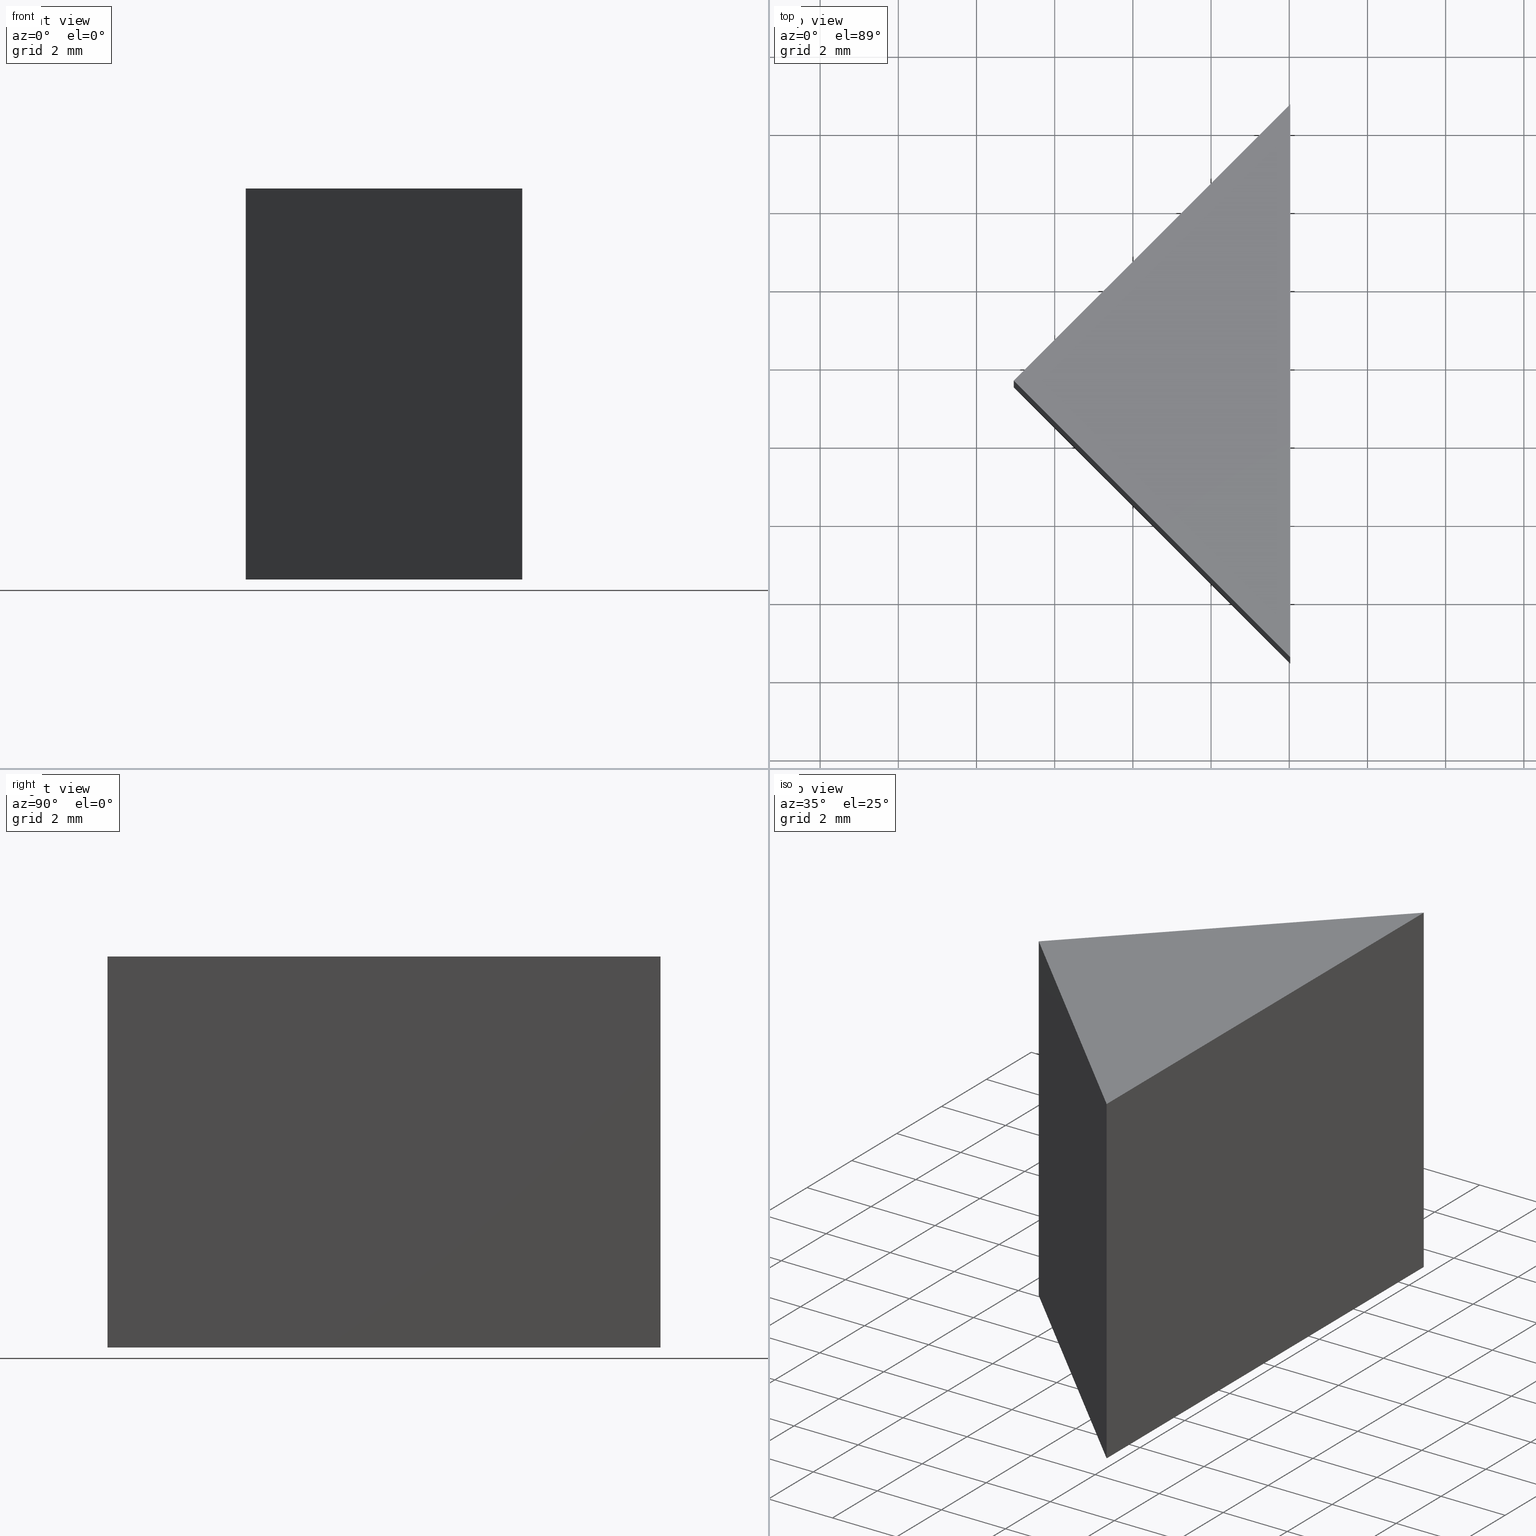
[diagram: canonical four-view strip — front | top / right | iso, engineering-drawing reading convention]
A machine part, canonical four-view strip (front | top / right | iso — engineering-drawing reading convention). The complete STEP part file that produces these views, byte-faithful:
ISO-10303-21;
HEADER;
FILE_DESCRIPTION (( 'STEP AP214' ),
    '1' );
FILE_NAME ('300001.STEP',
    '2019-08-12T07:43:15',
    ( '' ),
    ( '' ),
    'SwSTEP 2.0',
    'SolidWorks 2016',
    '' );
FILE_SCHEMA (( 'AUTOMOTIVE_DESIGN' ));
ENDSEC;

DATA;
#1 = CARTESIAN_POINT ( 'NONE',  ( 110.9533399051898500, 27.55138510566812500, 0.0000000000000000000 ) ) ;
#2 = ORIENTED_EDGE ( 'NONE', *, *, #15, .F. ) ;
#3 = CARTESIAN_POINT ( 'NONE',  ( 110.9533399051898500, 27.55138510566812500, 0.0000000000000000000 ) ) ;
#4 = AXIS2_PLACEMENT_3D ( 'NONE', #16, #104, #63 ) ;
#5 = PLANE ( 'NONE',  #163 ) ;
#6 = LINE ( 'NONE', #116, #88 ) ;
#7 = FACE_OUTER_BOUND ( 'NONE', #60, .T. ) ;
#8 = VERTEX_POINT ( 'NONE', #3 ) ;
#9 = COLOUR_RGB ( '',1.000000000000000000, 1.000000000000000000, 1.000000000000000000 ) ;
#10 =( NAMED_UNIT ( * ) SI_UNIT ( $, .STERADIAN. ) SOLID_ANGLE_UNIT ( ) );
#11 = LINE ( 'NONE', #28, #165 ) ;
#12 =( GEOMETRIC_REPRESENTATION_CONTEXT ( 3 ) GLOBAL_UNCERTAINTY_ASSIGNED_CONTEXT ( ( #120 ) ) GLOBAL_UNIT_ASSIGNED_CONTEXT ( ( #148, #54, #122 ) ) REPRESENTATION_CONTEXT ( 'NONE', 'WORKASPACE' ) );
#13 = STYLED_ITEM ( 'NONE', ( #72 ), #158 ) ;
#14 = CARTESIAN_POINT ( 'NONE',  ( 110.9533399051898500, 27.55138510566812500, 10.00000000000000000 ) ) ;
#15 = EDGE_CURVE ( 'NONE', #71, #56, #142, .T. ) ;
#16 = CARTESIAN_POINT ( 'NONE',  ( 0.0000000000000000000, 0.0000000000000000000, 0.0000000000000000000 ) ) ;
#17 = DIRECTION ( 'NONE',  ( 0.7071067811865464600, -0.7071067811865486800, 0.0000000000000000000 ) ) ;
#18 = DIRECTION ( 'NONE',  ( -0.0000000000000000000, 0.0000000000000000000, 1.000000000000000000 ) ) ;
#19 =( NAMED_UNIT ( * ) PLANE_ANGLE_UNIT ( ) SI_UNIT ( $, .RADIAN. ) );
#20 = PRODUCT_DEFINITION_FORMATION_WITH_SPECIFIED_SOURCE ( '�κ�', '', #168, .NOT_KNOWN. ) ;
#21 = DIRECTION ( 'NONE',  ( 0.0000000000000000000, 0.0000000000000000000, 1.000000000000000000 ) ) ;
#22 = PRODUCT_RELATED_PRODUCT_CATEGORY ( 'part', '', ( #168 ) ) ;
#23 = ORIENTED_EDGE ( 'NONE', *, *, #40, .T. ) ;
#24 = CARTESIAN_POINT ( 'NONE',  ( 118.0244077170553100, 20.48031729380264600, 10.00000000000000000 ) ) ;
#25 = VECTOR ( 'NONE', #118, 999.9999999999998900 ) ;
#26 = CARTESIAN_POINT ( 'NONE',  ( 118.0244077170553400, 34.62245291753359300, 0.0000000000000000000 ) ) ;
#27 = ORIENTED_EDGE ( 'NONE', *, *, #33, .T. ) ;
#28 = CARTESIAN_POINT ( 'NONE',  ( 110.9533399051898500, 27.55138510566812500, 0.0000000000000000000 ) ) ;
#29 = SURFACE_STYLE_FILL_AREA ( #82 ) ;
#30 = DIRECTION ( 'NONE',  ( 0.7071067811865468000, -0.7071067811865483500, 0.0000000000000000000 ) ) ;
#31 = CARTESIAN_POINT ( 'NONE',  ( 118.0244077170553100, 20.48031729380264600, 0.0000000000000000000 ) ) ;
#32 = AXIS2_PLACEMENT_3D ( 'NONE', #138, #21, #108 ) ;
#33 = EDGE_CURVE ( 'NONE', #8, #160, #11, .T. ) ;
#34 =( LENGTH_UNIT ( ) NAMED_UNIT ( * ) SI_UNIT ( .MILLI., .METRE. ) );
#35 = ORIENTED_EDGE ( 'NONE', *, *, #33, .F. ) ;
#36 = EDGE_CURVE ( 'NONE', #99, #8, #59, .T. ) ;
#37 = ADVANCED_FACE ( 'NONE', ( #50 ), #101, .F. ) ;
#38 = CLOSED_SHELL ( 'NONE', ( #49, #126, #37, #114, #86 ) ) ;
#39 = EDGE_CURVE ( 'NONE', #56, #102, #6, .T. ) ;
#40 = EDGE_CURVE ( 'NONE', #71, #160, #47, .T. ) ;
#41 = STYLED_ITEM ( 'NONE', ( #103 ), #133 ) ;
#42 = SURFACE_SIDE_STYLE ('',( #68 ) ) ;
#43 = FACE_OUTER_BOUND ( 'NONE', #95, .T. ) ;
#44 = VECTOR ( 'NONE', #80, 1000.000000000000000 ) ;
#45 =( NAMED_UNIT ( * ) PLANE_ANGLE_UNIT ( ) SI_UNIT ( $, .RADIAN. ) );
#46 = MECHANICAL_DESIGN_GEOMETRIC_PRESENTATION_REPRESENTATION (  '', ( #13 ), #12 ) ;
#47 = LINE ( 'NONE', #145, #115 ) ;
#48 = ORIENTED_EDGE ( 'NONE', *, *, #40, .F. ) ;
#49 = ADVANCED_FACE ( 'NONE', ( #84 ), #51, .F. ) ;
#50 = FACE_OUTER_BOUND ( 'NONE', #127, .T. ) ;
#51 = PLANE ( 'NONE',  #55 ) ;
#52 = SURFACE_STYLE_USAGE ( .BOTH. , #42 ) ;
#53 = EDGE_CURVE ( 'NONE', #102, #71, #150, .T. ) ;
#54 =( NAMED_UNIT ( * ) PLANE_ANGLE_UNIT ( ) SI_UNIT ( $, .RADIAN. ) );
#55 = AXIS2_PLACEMENT_3D ( 'NONE', #14, #143, #130 ) ;
#56 = VERTEX_POINT ( 'NONE', #111 ) ;
#57 = PRODUCT_DEFINITION_SHAPE ( 'NONE', 'NONE',  #100 ) ;
#58 = ORIENTED_EDGE ( 'NONE', *, *, #36, .T. ) ;
#59 = LINE ( 'NONE', #1, #25 ) ;
#60 = EDGE_LOOP ( 'NONE', ( #73, #121, #2, #23 ) ) ;
#61 = DIRECTION ( 'NONE',  ( -0.0000000000000000000, -0.0000000000000000000, -1.000000000000000000 ) ) ;
#62 = EDGE_CURVE ( 'NONE', #102, #8, #98, .T. ) ;
#63 = DIRECTION ( 'NONE',  ( 1.000000000000000000, 0.0000000000000000000, 0.0000000000000000000 ) ) ;
#64 = DIRECTION ( 'NONE',  ( 0.7071067811865486800, 0.7071067811865464600, 0.0000000000000000000 ) ) ;
#65 = DIRECTION ( 'NONE',  ( -1.962615573354719300E-015, -1.000000000000000000, 0.0000000000000000000 ) ) ;
#66 = VECTOR ( 'NONE', #131, 1000.000000000000000 ) ;
#67 = ORIENTED_EDGE ( 'NONE', *, *, #117, .T. ) ;
#68 = SURFACE_STYLE_FILL_AREA ( #106 ) ;
#69 =( NAMED_UNIT ( * ) SI_UNIT ( $, .STERADIAN. ) SOLID_ANGLE_UNIT ( ) );
#70 = PRODUCT_CONTEXT ( 'NONE', #161, 'mechanical' ) ;
#71 = VERTEX_POINT ( 'NONE', #24 ) ;
#72 = PRESENTATION_STYLE_ASSIGNMENT (( #52 ) ) ;
#73 = ORIENTED_EDGE ( 'NONE', *, *, #125, .T. ) ;
#74 = AXIS2_PLACEMENT_3D ( 'NONE', #119, #147, #65 ) ;
#75 = DIRECTION ( 'NONE',  ( -0.0000000000000000000, -0.0000000000000000000, -1.000000000000000000 ) ) ;
#76 = LINE ( 'NONE', #157, #44 ) ;
#77 = CARTESIAN_POINT ( 'NONE',  ( 110.9533399051898500, 27.55138510566812500, 10.00000000000000000 ) ) ;
#78 = DIRECTION ( 'NONE',  ( -0.7071067811865486800, -0.7071067811865464600, -0.0000000000000000000 ) ) ;
#79 = DIRECTION ( 'NONE',  ( 1.962615573354719300E-015, 1.000000000000000000, 0.0000000000000000000 ) ) ;
#80 = DIRECTION ( 'NONE',  ( -0.0000000000000000000, -0.0000000000000000000, -1.000000000000000000 ) ) ;
#81 = ORIENTED_EDGE ( 'NONE', *, *, #62, .T. ) ;
#82 = FILL_AREA_STYLE ('',( #137 ) ) ;
#83 = APPLICATION_CONTEXT ( 'automotive_design' ) ;
#84 = FACE_OUTER_BOUND ( 'NONE', #153, .T. ) ;
#85 = PRESENTATION_LAYER_ASSIGNMENT (  '', '', ( #41 ) ) ;
#86 = ADVANCED_FACE ( 'NONE', ( #43 ), #89, .F. ) ;
#87 = ORIENTED_EDGE ( 'NONE', *, *, #125, .F. ) ;
#88 = VECTOR ( 'NONE', #78, 999.9999999999998900 ) ;
#89 = PLANE ( 'NONE',  #4 ) ;
#90 = CARTESIAN_POINT ( 'NONE',  ( 0.0000000000000000000, 0.0000000000000000000, 10.00000000000000000 ) ) ;
#91 = CARTESIAN_POINT ( 'NONE',  ( 110.9533399051898500, 27.55138510566812500, 10.00000000000000000 ) ) ;
#92 = VECTOR ( 'NONE', #75, 1000.000000000000000 ) ;
#93 = PLANE ( 'NONE',  #74 ) ;
#94 = PRESENTATION_LAYER_ASSIGNMENT (  '', '', ( #13 ) ) ;
#95 = EDGE_LOOP ( 'NONE', ( #35, #139, #87 ) ) ;
#96 =( LENGTH_UNIT ( ) NAMED_UNIT ( * ) SI_UNIT ( .MILLI., .METRE. ) );
#97 = SURFACE_STYLE_USAGE ( .BOTH. , #151 ) ;
#98 = LINE ( 'NONE', #91, #92 ) ;
#99 = VERTEX_POINT ( 'NONE', #26 ) ;
#100 = PRODUCT_DEFINITION ( 'δ֪', '', #20, #167 ) ;
#101 = PLANE ( 'NONE',  #164 ) ;
#102 = VERTEX_POINT ( 'NONE', #77 ) ;
#103 = PRESENTATION_STYLE_ASSIGNMENT (( #97 ) ) ;
#104 = DIRECTION ( 'NONE',  ( -0.0000000000000000000, 0.0000000000000000000, 1.000000000000000000 ) ) ;
#105 =( GEOMETRIC_REPRESENTATION_CONTEXT ( 3 ) GLOBAL_UNCERTAINTY_ASSIGNED_CONTEXT ( ( #107 ) ) GLOBAL_UNIT_ASSIGNED_CONTEXT ( ( #96, #45, #69 ) ) REPRESENTATION_CONTEXT ( 'NONE', 'WORKASPACE' ) );
#106 = FILL_AREA_STYLE ('',( #156 ) ) ;
#107 = UNCERTAINTY_MEASURE_WITH_UNIT (LENGTH_MEASURE( 1.000000000000000100E-005 ), #96, 'distance_accuracy_value', 'NONE');
#108 = DIRECTION ( 'NONE',  ( 1.000000000000000000, 0.0000000000000000000, 0.0000000000000000000 ) ) ;
#109 = VECTOR ( 'NONE', #79, 1000.000000000000000 ) ;
#110 = LINE ( 'NONE', #31, #109 ) ;
#111 = CARTESIAN_POINT ( 'NONE',  ( 118.0244077170553400, 34.62245291753359300, 10.00000000000000000 ) ) ;
#112 = FACE_OUTER_BOUND ( 'NONE', #140, .T. ) ;
#113 = COLOUR_RGB ( '',1.000000000000000000, 1.000000000000000000, 1.000000000000000000 ) ;
#114 = ADVANCED_FACE ( 'NONE', ( #112 ), #5, .T. ) ;
#115 = VECTOR ( 'NONE', #61, 1000.000000000000000 ) ;
#116 = CARTESIAN_POINT ( 'NONE',  ( 110.9533399051898500, 27.55138510566812500, 10.00000000000000000 ) ) ;
#117 = EDGE_CURVE ( 'NONE', #56, #99, #76, .T. ) ;
#118 = DIRECTION ( 'NONE',  ( -0.7071067811865486800, -0.7071067811865464600, -0.0000000000000000000 ) ) ;
#119 = CARTESIAN_POINT ( 'NONE',  ( 118.0244077170553100, 20.48031729380264600, 10.00000000000000000 ) ) ;
#120 = UNCERTAINTY_MEASURE_WITH_UNIT (LENGTH_MEASURE( 1.000000000000000100E-005 ), #148, 'distance_accuracy_value', 'NONE');
#121 = ORIENTED_EDGE ( 'NONE', *, *, #117, .F. ) ;
#122 =( NAMED_UNIT ( * ) SI_UNIT ( $, .STERADIAN. ) SOLID_ANGLE_UNIT ( ) );
#123 = CARTESIAN_POINT ( 'NONE',  ( 118.0244077170553100, 20.48031729380264600, 0.0000000000000000000 ) ) ;
#124 = ORIENTED_EDGE ( 'NONE', *, *, #39, .T. ) ;
#125 = EDGE_CURVE ( 'NONE', #160, #99, #110, .T. ) ;
#126 = ADVANCED_FACE ( 'NONE', ( #7 ), #93, .F. ) ;
#127 = EDGE_LOOP ( 'NONE', ( #58, #149, #166, #67 ) ) ;
#128 = UNCERTAINTY_MEASURE_WITH_UNIT (LENGTH_MEASURE( 1.000000000000000100E-005 ), #34, 'distance_accuracy_value', 'NONE');
#129 = ORIENTED_EDGE ( 'NONE', *, *, #53, .T. ) ;
#130 = DIRECTION ( 'NONE',  ( -0.7071067811865468000, 0.7071067811865483500, 0.0000000000000000000 ) ) ;
#131 = DIRECTION ( 'NONE',  ( 1.962615573354719300E-015, 1.000000000000000000, 0.0000000000000000000 ) ) ;
#132 = CARTESIAN_POINT ( 'NONE',  ( 110.9533399051898500, 27.55138510566812500, 10.00000000000000000 ) ) ;
#133 = ADVANCED_BREP_SHAPE_REPRESENTATION ( '300001', ( #158, #32 ), #136 ) ;
#134 = DIRECTION ( 'NONE',  ( 1.000000000000000000, 0.0000000000000000000, 0.0000000000000000000 ) ) ;
#135 = ORIENTED_EDGE ( 'NONE', *, *, #15, .T. ) ;
#136 =( GEOMETRIC_REPRESENTATION_CONTEXT ( 3 ) GLOBAL_UNCERTAINTY_ASSIGNED_CONTEXT ( ( #128 ) ) GLOBAL_UNIT_ASSIGNED_CONTEXT ( ( #34, #19, #10 ) ) REPRESENTATION_CONTEXT ( 'NONE', 'WORKASPACE' ) );
#137 = FILL_AREA_STYLE_COLOUR ( '', #113 ) ;
#138 = CARTESIAN_POINT ( 'NONE',  ( 0.0000000000000000000, 0.0000000000000000000, 0.0000000000000000000 ) ) ;
#139 = ORIENTED_EDGE ( 'NONE', *, *, #36, .F. ) ;
#140 = EDGE_LOOP ( 'NONE', ( #129, #135, #124 ) ) ;
#141 = SHAPE_DEFINITION_REPRESENTATION ( #57, #133 ) ;
#142 = LINE ( 'NONE', #146, #66 ) ;
#143 = DIRECTION ( 'NONE',  ( 0.7071067811865483500, 0.7071067811865468000, -0.0000000000000000000 ) ) ;
#144 = DIRECTION ( 'NONE',  ( 0.7071067811865468000, -0.7071067811865483500, 0.0000000000000000000 ) ) ;
#145 = CARTESIAN_POINT ( 'NONE',  ( 118.0244077170553100, 20.48031729380264600, 10.00000000000000000 ) ) ;
#146 = CARTESIAN_POINT ( 'NONE',  ( 118.0244077170553100, 20.48031729380264600, 10.00000000000000000 ) ) ;
#147 = DIRECTION ( 'NONE',  ( -1.000000000000000000, 1.962615573354719300E-015, 0.0000000000000000000 ) ) ;
#148 =( LENGTH_UNIT ( ) NAMED_UNIT ( * ) SI_UNIT ( .MILLI., .METRE. ) );
#149 = ORIENTED_EDGE ( 'NONE', *, *, #62, .F. ) ;
#150 = LINE ( 'NONE', #155, #169 ) ;
#151 = SURFACE_SIDE_STYLE ('',( #29 ) ) ;
#152 = APPLICATION_PROTOCOL_DEFINITION ( 'draft international standard', 'automotive_design', 1998, #161 ) ;
#153 = EDGE_LOOP ( 'NONE', ( #27, #48, #162, #81 ) ) ;
#154 = MECHANICAL_DESIGN_GEOMETRIC_PRESENTATION_REPRESENTATION (  '', ( #41 ), #105 ) ;
#155 = CARTESIAN_POINT ( 'NONE',  ( 110.9533399051898500, 27.55138510566812500, 10.00000000000000000 ) ) ;
#156 = FILL_AREA_STYLE_COLOUR ( '', #9 ) ;
#157 = CARTESIAN_POINT ( 'NONE',  ( 118.0244077170553400, 34.62245291753359300, 10.00000000000000000 ) ) ;
#158 = MANIFOLD_SOLID_BREP ( '͹̨-����1', #38 ) ;
#159 = APPLICATION_PROTOCOL_DEFINITION ( 'draft international standard', 'automotive_design', 1998, #83 ) ;
#160 = VERTEX_POINT ( 'NONE', #123 ) ;
#161 = APPLICATION_CONTEXT ( 'automotive_design' ) ;
#162 = ORIENTED_EDGE ( 'NONE', *, *, #53, .F. ) ;
#163 = AXIS2_PLACEMENT_3D ( 'NONE', #90, #18, #134 ) ;
#164 = AXIS2_PLACEMENT_3D ( 'NONE', #132, #17, #64 ) ;
#165 = VECTOR ( 'NONE', #30, 999.9999999999998900 ) ;
#166 = ORIENTED_EDGE ( 'NONE', *, *, #39, .F. ) ;
#167 = PRODUCT_DEFINITION_CONTEXT ( 'detailed design', #83, 'design' ) ;
#168 = PRODUCT ( '300001', '300001', '', ( #70 ) ) ;
#169 = VECTOR ( 'NONE', #144, 999.9999999999998900 ) ;
ENDSEC;
END-ISO-10303-21;
